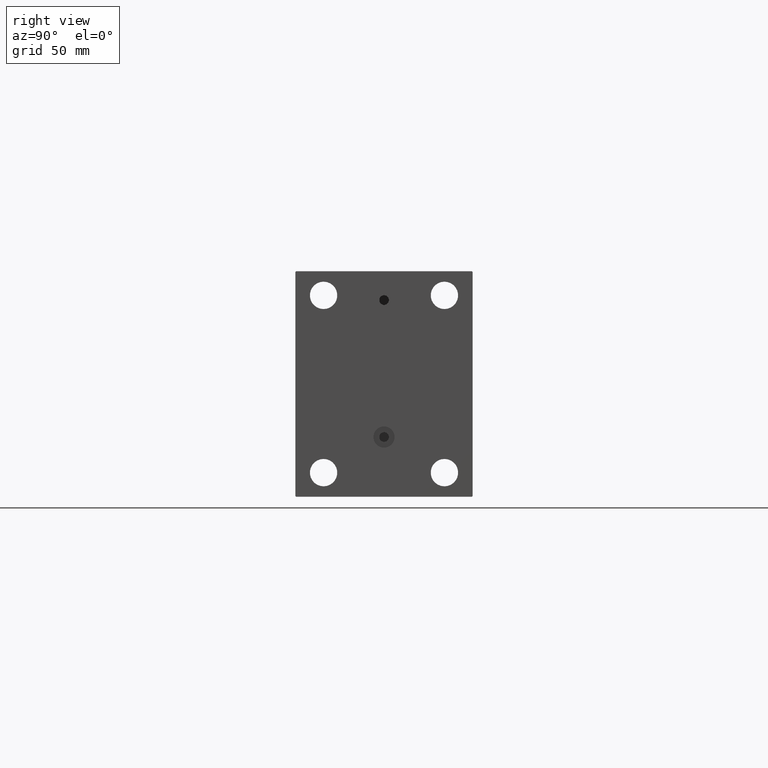
[diagram: clean part render]
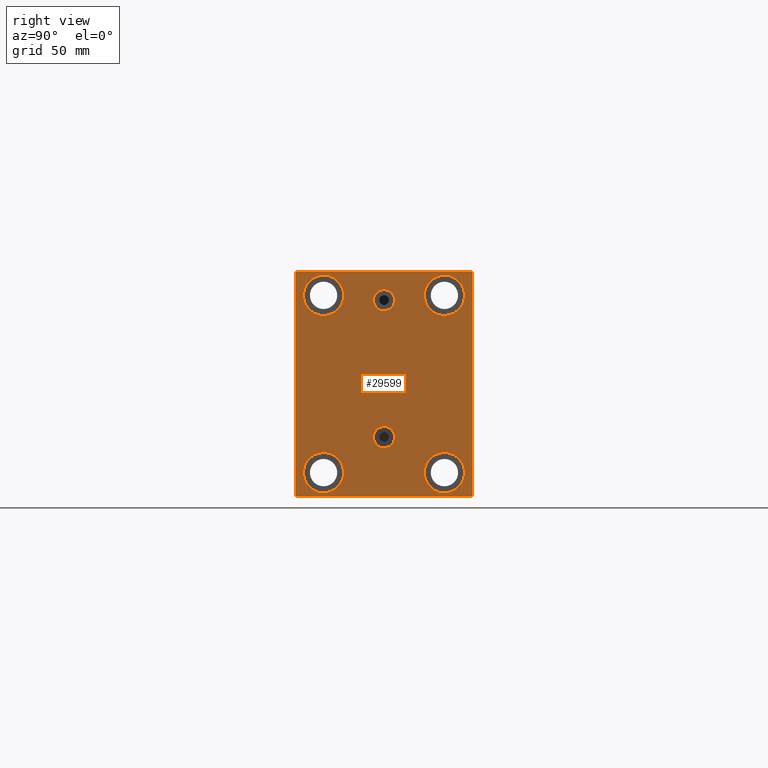
[diagram: same view with one face highlighted and labeled with its STEP entity id]
A machine part, right view. The second image highlights one B-rep face of the part: STEP entity #29599.
In plain terms, the highlighted planar face has unit normal (1, 0, 0).
Its self-contained STEP definition (entity closure, byte-faithful):
#162 = AXIS2_PLACEMENT_3D ( 'NONE', #42690, #24746, #39155 ) ;
#251 = CARTESIAN_POINT ( 'NONE',  ( 293.0000000000000000, 37.50000000000000711, 67.50000000000000000 ) ) ;
#380 = LINE ( 'NONE', #31999, #30875 ) ;
#661 = CARTESIAN_POINT ( 'NONE',  ( 293.0000000000000000, 4.041334437186266200E-15, -33.00000000000000000 ) ) ;
#1087 = CARTESIAN_POINT ( 'NONE',  ( 293.0000000000000000, -55.00000000000000711, -70.00000000000002842 ) ) ;
#1109 = CARTESIAN_POINT ( 'NONE',  ( 293.0000000000000000, 37.49999999999997868, -67.49999999999998579 ) ) ;
#1179 = ORIENTED_EDGE ( 'NONE', *, *, #28679, .T. ) ;
#1893 = EDGE_CURVE ( 'NONE', #42853, #2175, #29646, .T. ) ;
#2175 = VERTEX_POINT ( 'NONE', #21256 ) ;
#2311 = DIRECTION ( 'NONE',  ( -0.000000000000000000, -0.7071067811865474617, 0.7071067811865474617 ) ) ;
#2968 = CARTESIAN_POINT ( 'NONE',  ( 293.0000000000000000, -37.50000000000002132, -67.49999999999998579 ) ) ;
#3112 = VERTEX_POINT ( 'NONE', #21745 ) ;
#3147 = CIRCLE ( 'NONE', #162, 6.580000000000002736 ) ;
#3308 = ORIENTED_EDGE ( 'NONE', *, *, #42337, .T. ) ;
#3666 = CARTESIAN_POINT ( 'NONE',  ( 293.0000000000000000, -7.970046508789298136E-15, 58.58000000000000540 ) ) ;
#3752 = AXIS2_PLACEMENT_3D ( 'NONE', #9609, #42900, #17160 ) ;
#3996 = ORIENTED_EDGE ( 'NONE', *, *, #18618, .T. ) ;
#4609 = FACE_BOUND ( 'NONE', #11604, .T. ) ;
#4674 = LINE ( 'NONE', #40104, #27587 ) ;
#4903 = DIRECTION ( 'NONE',  ( 0.000000000000000000, -1.982541115402065110E-16, 1.000000000000000000 ) ) ;
#4995 = CARTESIAN_POINT ( 'NONE',  ( 293.0000000000000000, -37.50000000000000711, 67.50000000000000000 ) ) ;
#5221 = CARTESIAN_POINT ( 'NONE',  ( 293.0000000000000000, 54.99999999999999289, 69.50000000000000000 ) ) ;
#5850 = CARTESIAN_POINT ( 'NONE',  ( 293.0000000000000000, 62.24999999999999289, 62.24999999999999289 ) ) ;
#7099 = VECTOR ( 'NONE', #11101, 1000.000000000000000 ) ;
#7154 = DIRECTION ( 'NONE',  ( -1.000000000000000000, -0.000000000000000000, -0.000000000000000000 ) ) ;
#7303 = VERTEX_POINT ( 'NONE', #5221 ) ;
#7538 = CARTESIAN_POINT ( 'NONE',  ( 293.0000000000000000, 54.49999999999999289, 70.00000000000000000 ) ) ;
#7753 = VERTEX_POINT ( 'NONE', #21619 ) ;
#7781 = LINE ( 'NONE', #43445, #7099 ) ;
#8048 = ORIENTED_EDGE ( 'NONE', *, *, #13071, .T. ) ;
#8164 = LINE ( 'NONE', #33654, #19228 ) ;
#8176 = ORIENTED_EDGE ( 'NONE', *, *, #34739, .F. ) ;
#8439 = CIRCLE ( 'NONE', #25770, 12.49999999999999645 ) ;
#9061 = DIRECTION ( 'NONE',  ( 1.000000000000000000, 0.000000000000000000, 0.000000000000000000 ) ) ;
#9110 = DIRECTION ( 'NONE',  ( 0.000000000000000000, 0.000000000000000000, 1.000000000000000000 ) ) ;
#9263 = AXIS2_PLACEMENT_3D ( 'NONE', #10026, #45227, #46152 ) ;
#9609 = CARTESIAN_POINT ( 'NONE',  ( 293.0000000000000000, -37.50000000000002132, -54.99999999999999289 ) ) ;
#9795 = CARTESIAN_POINT ( 'NONE',  ( 293.0000000000000000, 54.50000000000004974, -70.00000000000000000 ) ) ;
#10026 = CARTESIAN_POINT ( 'NONE',  ( 293.0000000000000000, 37.49999999999997868, -54.99999999999999289 ) ) ;
#10243 = EDGE_CURVE ( 'NONE', #41086, #7303, #4674, .T. ) ;
#11101 = DIRECTION ( 'NONE',  ( 0.000000000000000000, -1.000000000000000000, -1.261617073437677999E-16 ) ) ;
#11604 = EDGE_LOOP ( 'NONE', ( #8176, #38335 ) ) ;
#11924 = PLANE ( 'NONE',  #39978 ) ;
#12082 = DIRECTION ( 'NONE',  ( 0.000000000000000000, 0.000000000000000000, -1.000000000000000000 ) ) ;
#12112 = EDGE_LOOP ( 'NONE', ( #42126, #24651 ) ) ;
#12742 = VERTEX_POINT ( 'NONE', #43924 ) ;
#12970 = VERTEX_POINT ( 'NONE', #40317 ) ;
#13071 = EDGE_CURVE ( 'NONE', #44347, #15658, #22392, .T. ) ;
#13185 = DIRECTION ( 'NONE',  ( 0.000000000000000000, 0.000000000000000000, 1.000000000000000000 ) ) ;
#13985 = VERTEX_POINT ( 'NONE', #25428 ) ;
#15064 = DIRECTION ( 'NONE',  ( 1.000000000000000000, 0.000000000000000000, -0.000000000000000000 ) ) ;
#15151 = VERTEX_POINT ( 'NONE', #3666 ) ;
#15658 = VERTEX_POINT ( 'NONE', #4995 ) ;
#15671 = EDGE_CURVE ( 'NONE', #13985, #15151, #39721, .T. ) ;
#15793 = ORIENTED_EDGE ( 'NONE', *, *, #42587, .T. ) ;
#16025 = DIRECTION ( 'NONE',  ( 0.000000000000000000, -0.7071067811865474617, -0.7071067811865474617 ) ) ;
#16134 = VERTEX_POINT ( 'NONE', #251 ) ;
#16495 = CARTESIAN_POINT ( 'NONE',  ( 293.0000000000000000, -37.50000000000002132, -42.49999999999999289 ) ) ;
#16841 = VECTOR ( 'NONE', #16025, 1000.000000000000114 ) ;
#16890 = DIRECTION ( 'NONE',  ( 0.000000000000000000, 0.000000000000000000, -1.000000000000000000 ) ) ;
#16950 = CARTESIAN_POINT ( 'NONE',  ( 293.0000000000000000, -37.50000000000002132, -54.99999999999999289 ) ) ;
#16985 = DIRECTION ( 'NONE',  ( 0.000000000000000000, 0.000000000000000000, -1.000000000000000000 ) ) ;
#17160 = DIRECTION ( 'NONE',  ( 0.000000000000000000, 0.000000000000000000, 1.000000000000000000 ) ) ;
#17175 = LINE ( 'NONE', #5850, #42373 ) ;
#17246 = CARTESIAN_POINT ( 'NONE',  ( 293.0000000000000000, 4.041334437186266200E-15, -39.58000000000000540 ) ) ;
#17305 = AXIS2_PLACEMENT_3D ( 'NONE', #38612, #31521, #16890 ) ;
#17315 = DIRECTION ( 'NONE',  ( -1.000000000000000000, -0.000000000000000000, -0.000000000000000000 ) ) ;
#17938 = EDGE_LOOP ( 'NONE', ( #29074, #31670 ) ) ;
#18453 = ORIENTED_EDGE ( 'NONE', *, *, #27884, .T. ) ;
#18589 = AXIS2_PLACEMENT_3D ( 'NONE', #33795, #27373, #12082 ) ;
#18618 = EDGE_CURVE ( 'NONE', #15658, #44347, #41262, .T. ) ;
#18765 = DIRECTION ( 'NONE',  ( -1.000000000000000000, -0.000000000000000000, -0.000000000000000000 ) ) ;
#19228 = VECTOR ( 'NONE', #22792, 1000.000000000000114 ) ;
#19234 = DIRECTION ( 'NONE',  ( 0.000000000000000000, 0.000000000000000000, -1.000000000000000000 ) ) ;
#19581 = CIRCLE ( 'NONE', #3752, 12.49999999999999645 ) ;
#19699 = FACE_BOUND ( 'NONE', #33767, .T. ) ;
#20265 = AXIS2_PLACEMENT_3D ( 'NONE', #40492, #18765, #29636 ) ;
#20336 = EDGE_LOOP ( 'NONE', ( #32332, #15793, #3308, #1179, #29300, #39880, #40968, #36121 ) ) ;
#20527 = LINE ( 'NONE', #34926, #25897 ) ;
#20663 = DIRECTION ( 'NONE',  ( -1.000000000000000000, -0.000000000000000000, -0.000000000000000000 ) ) ;
#20812 = VERTEX_POINT ( 'NONE', #17246 ) ;
#20895 = AXIS2_PLACEMENT_3D ( 'NONE', #24154, #17315, #35490 ) ;
#21057 = CIRCLE ( 'NONE', #44416, 12.49999999999999645 ) ;
#21256 = CARTESIAN_POINT ( 'NONE',  ( 293.0000000000000000, 37.49999999999997868, -42.49999999999999289 ) ) ;
#21619 = CARTESIAN_POINT ( 'NONE',  ( 293.0000000000000000, -54.50000000000000711, 69.99999999999998579 ) ) ;
#21745 = CARTESIAN_POINT ( 'NONE',  ( 293.0000000000000000, 4.847152031025224453E-15, -26.41999999999999815 ) ) ;
#22306 = VERTEX_POINT ( 'NONE', #2968 ) ;
#22392 = CIRCLE ( 'NONE', #45009, 12.49999999999999645 ) ;
#22550 = FACE_OUTER_BOUND ( 'NONE', #20336, .T. ) ;
#22792 = DIRECTION ( 'NONE',  ( -0.000000000000000000, 0.7071067811865474617, 0.7071067811865474617 ) ) ;
#22854 = EDGE_LOOP ( 'NONE', ( #25641, #18453 ) ) ;
#23788 = LINE ( 'NONE', #30646, #16841 ) ;
#24154 = CARTESIAN_POINT ( 'NONE',  ( 293.0000000000000000, -37.50000000000000711, 55.00000000000000711 ) ) ;
#24196 = CARTESIAN_POINT ( 'NONE',  ( 293.0000000000000000, 37.50000000000000711, 55.00000000000000711 ) ) ;
#24651 = ORIENTED_EDGE ( 'NONE', *, *, #34552, .T. ) ;
#24682 = EDGE_CURVE ( 'NONE', #22306, #34582, #19581, .T. ) ;
#24746 = DIRECTION ( 'NONE',  ( 1.000000000000000000, 0.000000000000000000, -0.000000000000000000 ) ) ;
#25428 = CARTESIAN_POINT ( 'NONE',  ( 293.0000000000000000, -8.775864102628257178E-15, 45.42000000000000171 ) ) ;
#25641 = ORIENTED_EDGE ( 'NONE', *, *, #1893, .T. ) ;
#25770 = AXIS2_PLACEMENT_3D ( 'NONE', #16950, #27803, #13185 ) ;
#25789 = CARTESIAN_POINT ( 'NONE',  ( 293.0000000000000000, 37.50000000000000711, 55.00000000000000711 ) ) ;
#25897 = VECTOR ( 'NONE', #16985, 1000.000000000000000 ) ;
#26317 = CARTESIAN_POINT ( 'NONE',  ( 293.0000000000000000, 0.000000000000000000, 0.000000000000000000 ) ) ;
#26554 = LINE ( 'NONE', #1087, #26768 ) ;
#26768 = VECTOR ( 'NONE', #40971, 1000.000000000000000 ) ;
#26998 = FACE_BOUND ( 'NONE', #17938, .T. ) ;
#27047 = DIRECTION ( 'NONE',  ( -1.000000000000000000, -0.000000000000000000, -0.000000000000000000 ) ) ;
#27373 = DIRECTION ( 'NONE',  ( 1.000000000000000000, 0.000000000000000000, 0.000000000000000000 ) ) ;
#27498 = EDGE_CURVE ( 'NONE', #3112, #20812, #32351, .T. ) ;
#27523 = EDGE_LOOP ( 'NONE', ( #43084, #46451 ) ) ;
#27587 = VECTOR ( 'NONE', #4903, 1000.000000000000000 ) ;
#27618 = EDGE_CURVE ( 'NONE', #16134, #32831, #21057, .T. ) ;
#27714 = CARTESIAN_POINT ( 'NONE',  ( 293.0000000000000000, -54.50000000000003553, -70.00000000000002842 ) ) ;
#27803 = DIRECTION ( 'NONE',  ( -1.000000000000000000, -0.000000000000000000, -0.000000000000000000 ) ) ;
#27884 = EDGE_CURVE ( 'NONE', #2175, #42853, #45921, .T. ) ;
#28581 = EDGE_CURVE ( 'NONE', #15151, #13985, #46712, .T. ) ;
#28679 = EDGE_CURVE ( 'NONE', #12970, #38757, #380, .T. ) ;
#29074 = ORIENTED_EDGE ( 'NONE', *, *, #34093, .T. ) ;
#29223 = DIRECTION ( 'NONE',  ( 0.000000000000000000, 0.000000000000000000, 1.000000000000000000 ) ) ;
#29300 = ORIENTED_EDGE ( 'NONE', *, *, #46059, .T. ) ;
#29599 = ADVANCED_FACE ( 'NONE', ( #29870, #4609, #44278, #19699, #26998, #36956, #22550 ), #11924, .T. ) ;
#29636 = DIRECTION ( 'NONE',  ( 0.000000000000000000, 0.000000000000000000, 1.000000000000000000 ) ) ;
#29646 = CIRCLE ( 'NONE', #9263, 12.49999999999999645 ) ;
#29870 = FACE_BOUND ( 'NONE', #27523, .T. ) ;
#30646 = CARTESIAN_POINT ( 'NONE',  ( 293.0000000000000000, -62.25000000000000000, 62.25000000000000000 ) ) ;
#30875 = VECTOR ( 'NONE', #36730, 999.9999999999998863 ) ;
#31521 = DIRECTION ( 'NONE',  ( 1.000000000000000000, 0.000000000000000000, 0.000000000000000000 ) ) ;
#31670 = ORIENTED_EDGE ( 'NONE', *, *, #27618, .T. ) ;
#31838 = VERTEX_POINT ( 'NONE', #9795 ) ;
#31999 = CARTESIAN_POINT ( 'NONE',  ( 293.0000000000000000, -62.24999999999927525, -62.25000000000100897 ) ) ;
#32332 = ORIENTED_EDGE ( 'NONE', *, *, #39621, .T. ) ;
#32351 = CIRCLE ( 'NONE', #42933, 6.580000000000002736 ) ;
#32831 = VERTEX_POINT ( 'NONE', #39313 ) ;
#33352 = CARTESIAN_POINT ( 'NONE',  ( 293.0000000000000000, -37.50000000000000711, 42.50000000000000711 ) ) ;
#33654 = CARTESIAN_POINT ( 'NONE',  ( 293.0000000000000000, 62.25000000000002842, -62.25000000000002842 ) ) ;
#33767 = EDGE_LOOP ( 'NONE', ( #8048, #3996 ) ) ;
#33795 = CARTESIAN_POINT ( 'NONE',  ( 293.0000000000000000, -8.775864102628257178E-15, 52.00000000000000711 ) ) ;
#33833 = CARTESIAN_POINT ( 'NONE',  ( 293.0000000000000000, 55.00000000000002132, -69.50000000000002842 ) ) ;
#34093 = EDGE_CURVE ( 'NONE', #32831, #16134, #40105, .T. ) ;
#34552 = EDGE_CURVE ( 'NONE', #34582, #22306, #8439, .T. ) ;
#34582 = VERTEX_POINT ( 'NONE', #16495 ) ;
#34739 = EDGE_CURVE ( 'NONE', #20812, #3112, #3147, .T. ) ;
#34926 = CARTESIAN_POINT ( 'NONE',  ( 293.0000000000000000, -55.00000000000000711, 69.99999999999998579 ) ) ;
#35258 = EDGE_CURVE ( 'NONE', #7303, #41621, #17175, .T. ) ;
#35490 = DIRECTION ( 'NONE',  ( 0.000000000000000000, 0.000000000000000000, 1.000000000000000000 ) ) ;
#36121 = ORIENTED_EDGE ( 'NONE', *, *, #35258, .T. ) ;
#36730 = DIRECTION ( 'NONE',  ( -0.000000000000000000, 0.7071067811865574537, -0.7071067811865376918 ) ) ;
#36956 = FACE_BOUND ( 'NONE', #12112, .T. ) ;
#37470 = CARTESIAN_POINT ( 'NONE',  ( 293.0000000000000000, -37.50000000000000711, 55.00000000000000711 ) ) ;
#38335 = ORIENTED_EDGE ( 'NONE', *, *, #27498, .F. ) ;
#38612 = CARTESIAN_POINT ( 'NONE',  ( 293.0000000000000000, -8.775864102628257178E-15, 52.00000000000000711 ) ) ;
#38757 = VERTEX_POINT ( 'NONE', #27714 ) ;
#39155 = DIRECTION ( 'NONE',  ( 0.000000000000000000, 0.000000000000000000, 1.000000000000000000 ) ) ;
#39313 = CARTESIAN_POINT ( 'NONE',  ( 293.0000000000000000, 37.50000000000000711, 42.50000000000000711 ) ) ;
#39356 = AXIS2_PLACEMENT_3D ( 'NONE', #25789, #7154, #43278 ) ;
#39621 = EDGE_CURVE ( 'NONE', #41621, #7753, #7781, .T. ) ;
#39721 = CIRCLE ( 'NONE', #18589, 6.580000000000002736 ) ;
#39880 = ORIENTED_EDGE ( 'NONE', *, *, #46067, .T. ) ;
#39978 = AXIS2_PLACEMENT_3D ( 'NONE', #26317, #9061, #19234 ) ;
#40104 = CARTESIAN_POINT ( 'NONE',  ( 293.0000000000000000, 55.00000000000002132, -70.00000000000000000 ) ) ;
#40105 = CIRCLE ( 'NONE', #39356, 12.49999999999999645 ) ;
#40317 = CARTESIAN_POINT ( 'NONE',  ( 293.0000000000000000, -55.00000000000000711, -69.50000000000007105 ) ) ;
#40492 = CARTESIAN_POINT ( 'NONE',  ( 293.0000000000000000, 37.49999999999997868, -54.99999999999999289 ) ) ;
#40968 = ORIENTED_EDGE ( 'NONE', *, *, #10243, .T. ) ;
#40971 = DIRECTION ( 'NONE',  ( 0.000000000000000000, 1.000000000000000000, 2.523234146875355012E-16 ) ) ;
#41086 = VERTEX_POINT ( 'NONE', #33833 ) ;
#41262 = CIRCLE ( 'NONE', #20895, 12.49999999999999645 ) ;
#41621 = VERTEX_POINT ( 'NONE', #7538 ) ;
#42126 = ORIENTED_EDGE ( 'NONE', *, *, #24682, .T. ) ;
#42337 = EDGE_CURVE ( 'NONE', #12742, #12970, #20527, .T. ) ;
#42373 = VECTOR ( 'NONE', #2311, 1000.000000000000114 ) ;
#42587 = EDGE_CURVE ( 'NONE', #7753, #12742, #23788, .T. ) ;
#42690 = CARTESIAN_POINT ( 'NONE',  ( 293.0000000000000000, 4.041334437186266200E-15, -33.00000000000000000 ) ) ;
#42853 = VERTEX_POINT ( 'NONE', #1109 ) ;
#42900 = DIRECTION ( 'NONE',  ( -1.000000000000000000, -0.000000000000000000, -0.000000000000000000 ) ) ;
#42933 = AXIS2_PLACEMENT_3D ( 'NONE', #661, #15064, #29223 ) ;
#43084 = ORIENTED_EDGE ( 'NONE', *, *, #15671, .F. ) ;
#43278 = DIRECTION ( 'NONE',  ( 0.000000000000000000, 0.000000000000000000, 1.000000000000000000 ) ) ;
#43445 = CARTESIAN_POINT ( 'NONE',  ( 293.0000000000000000, 54.99999999999999289, 70.00000000000000000 ) ) ;
#43924 = CARTESIAN_POINT ( 'NONE',  ( 293.0000000000000000, -55.00000000000000711, 69.49999999999998579 ) ) ;
#44278 = FACE_BOUND ( 'NONE', #22854, .T. ) ;
#44347 = VERTEX_POINT ( 'NONE', #33352 ) ;
#44416 = AXIS2_PLACEMENT_3D ( 'NONE', #24196, #20663, #46644 ) ;
#45009 = AXIS2_PLACEMENT_3D ( 'NONE', #37470, #27047, #9110 ) ;
#45227 = DIRECTION ( 'NONE',  ( -1.000000000000000000, -0.000000000000000000, -0.000000000000000000 ) ) ;
#45921 = CIRCLE ( 'NONE', #20265, 12.49999999999999645 ) ;
#46059 = EDGE_CURVE ( 'NONE', #38757, #31838, #26554, .T. ) ;
#46067 = EDGE_CURVE ( 'NONE', #31838, #41086, #8164, .T. ) ;
#46152 = DIRECTION ( 'NONE',  ( 0.000000000000000000, 0.000000000000000000, 1.000000000000000000 ) ) ;
#46451 = ORIENTED_EDGE ( 'NONE', *, *, #28581, .F. ) ;
#46644 = DIRECTION ( 'NONE',  ( 0.000000000000000000, 0.000000000000000000, 1.000000000000000000 ) ) ;
#46712 = CIRCLE ( 'NONE', #17305, 6.580000000000002736 ) ;